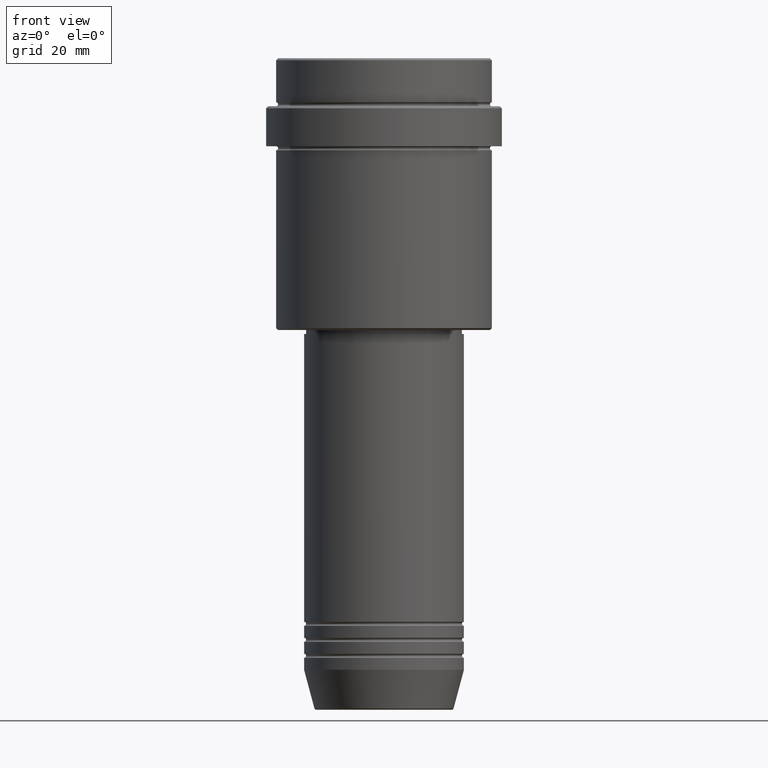
[diagram: clean part render]
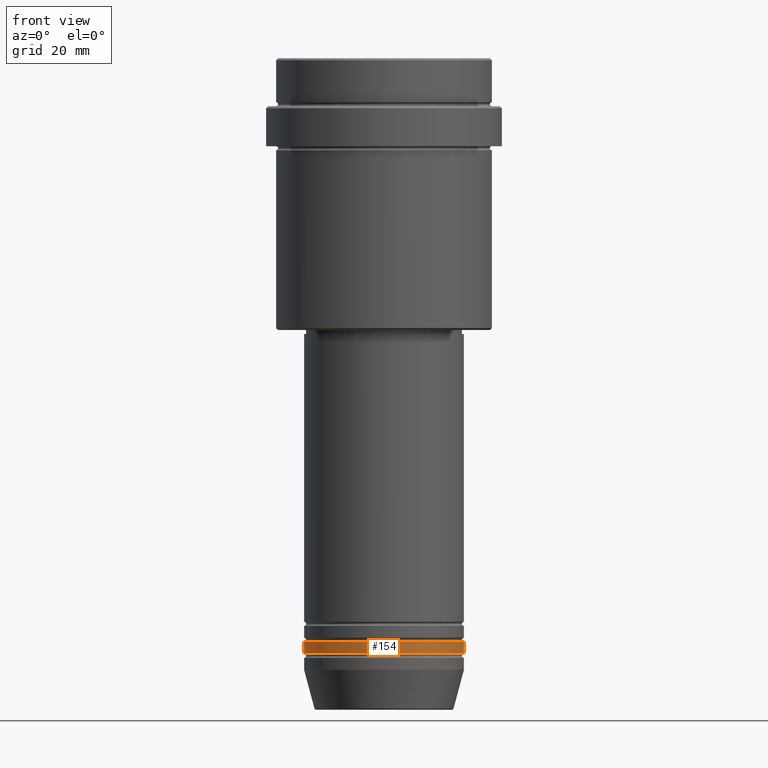
[diagram: same view with one face highlighted and labeled with its STEP entity id]
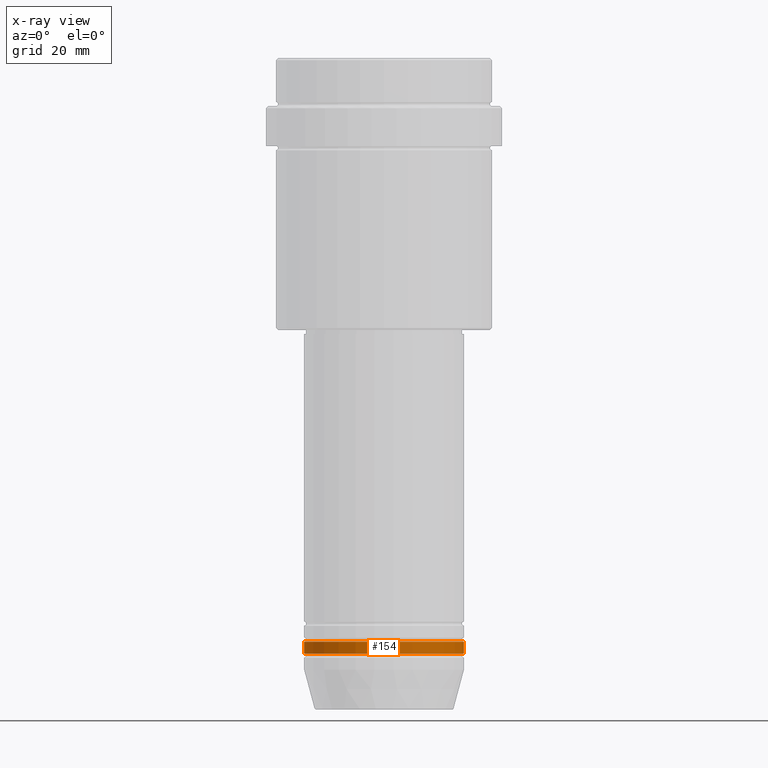
[diagram: x-ray of the same camera — body ghosted, the highlighted face saturated]
A machine part, front view. The second image highlights one B-rep face of the part: STEP entity #154.
The next image is the same camera in x-ray: the body ghosted, the highlighted face saturated — about 0% of this face is hidden behind the body in this view.
In plain terms, the highlighted cylindrical surface (partial cylindrical patch) has radius 20 mm, axis along (-0, -0, 1).
Its self-contained STEP definition (entity closure, byte-faithful):
#18 = FACE_OUTER_BOUND ( 'NONE', #510, .T. ) ;
#26 = DIRECTION ( 'NONE',  ( -0.000000000000000000, -0.000000000000000000, 1.000000000000000000 ) ) ;
#41 = CARTESIAN_POINT ( 'NONE',  ( 0.000000000000000000, 0.000000000000000000, -148.9999999999998579 ) ) ;
#94 = DIRECTION ( 'NONE',  ( -0.000000000000000000, -0.000000000000000000, 1.000000000000000000 ) ) ;
#95 = VERTEX_POINT ( 'NONE', #908 ) ;
#103 = VERTEX_POINT ( 'NONE', #673 ) ;
#139 = CARTESIAN_POINT ( 'NONE',  ( -20.00000000000000000, 2.449293598294706513E-15, 0.000000000000000000 ) ) ;
#154 = ADVANCED_FACE ( 'NONE', ( #18 ), #564, .T. ) ;
#164 = VERTEX_POINT ( 'NONE', #791 ) ;
#180 = EDGE_CURVE ( 'NONE', #95, #103, #1358, .T. ) ;
#183 = CARTESIAN_POINT ( 'NONE',  ( 0.000000000000000000, 0.000000000000000000, -145.9999999999998863 ) ) ;
#270 = DIRECTION ( 'NONE',  ( 1.000000000000000000, 0.000000000000000000, 0.000000000000000000 ) ) ;
#326 = VERTEX_POINT ( 'NONE', #599 ) ;
#381 = AXIS2_PLACEMENT_3D ( 'NONE', #1009, #450, #270 ) ;
#391 = ORIENTED_EDGE ( 'NONE', *, *, #797, .T. ) ;
#450 = DIRECTION ( 'NONE',  ( -0.000000000000000000, -0.000000000000000000, 1.000000000000000000 ) ) ;
#472 = DIRECTION ( 'NONE',  ( 1.000000000000000000, 0.000000000000000000, 0.000000000000000000 ) ) ;
#508 = VECTOR ( 'NONE', #26, 1000.000000000000000 ) ;
#510 = EDGE_LOOP ( 'NONE', ( #535, #1162, #391, #726 ) ) ;
#535 = ORIENTED_EDGE ( 'NONE', *, *, #1115, .F. ) ;
#564 = CYLINDRICAL_SURFACE ( 'NONE', #381, 20.00000000000000000 ) ;
#599 = CARTESIAN_POINT ( 'NONE',  ( -20.00000000000000000, 2.449293598294706513E-15, -145.9999999999998863 ) ) ;
#673 = CARTESIAN_POINT ( 'NONE',  ( 20.00000000000000000, 0.000000000000000000, -148.9999999999998579 ) ) ;
#695 = DIRECTION ( 'NONE',  ( -0.000000000000000000, -0.000000000000000000, 1.000000000000000000 ) ) ;
#726 = ORIENTED_EDGE ( 'NONE', *, *, #1250, .F. ) ;
#763 = CIRCLE ( 'NONE', #1404, 20.00000000000000000 ) ;
#791 = CARTESIAN_POINT ( 'NONE',  ( 20.00000000000000000, 0.000000000000000000, -145.9999999999998863 ) ) ;
#797 = EDGE_CURVE ( 'NONE', #103, #164, #931, .T. ) ;
#808 = AXIS2_PLACEMENT_3D ( 'NONE', #41, #695, #472 ) ;
#811 = VECTOR ( 'NONE', #1254, 1000.000000000000000 ) ;
#819 = CARTESIAN_POINT ( 'NONE',  ( 20.00000000000000000, 0.000000000000000000, 0.000000000000000000 ) ) ;
#908 = CARTESIAN_POINT ( 'NONE',  ( -20.00000000000000000, 2.449293598294706513E-15, -148.9999999999998579 ) ) ;
#931 = LINE ( 'NONE', #819, #811 ) ;
#1009 = CARTESIAN_POINT ( 'NONE',  ( 0.000000000000000000, 0.000000000000000000, 0.000000000000000000 ) ) ;
#1022 = DIRECTION ( 'NONE',  ( 1.000000000000000000, 0.000000000000000000, 0.000000000000000000 ) ) ;
#1113 = LINE ( 'NONE', #139, #508 ) ;
#1115 = EDGE_CURVE ( 'NONE', #95, #326, #1113, .T. ) ;
#1162 = ORIENTED_EDGE ( 'NONE', *, *, #180, .T. ) ;
#1250 = EDGE_CURVE ( 'NONE', #326, #164, #763, .T. ) ;
#1254 = DIRECTION ( 'NONE',  ( -0.000000000000000000, -0.000000000000000000, 1.000000000000000000 ) ) ;
#1358 = CIRCLE ( 'NONE', #808, 20.00000000000000000 ) ;
#1404 = AXIS2_PLACEMENT_3D ( 'NONE', #183, #94, #1022 ) ;